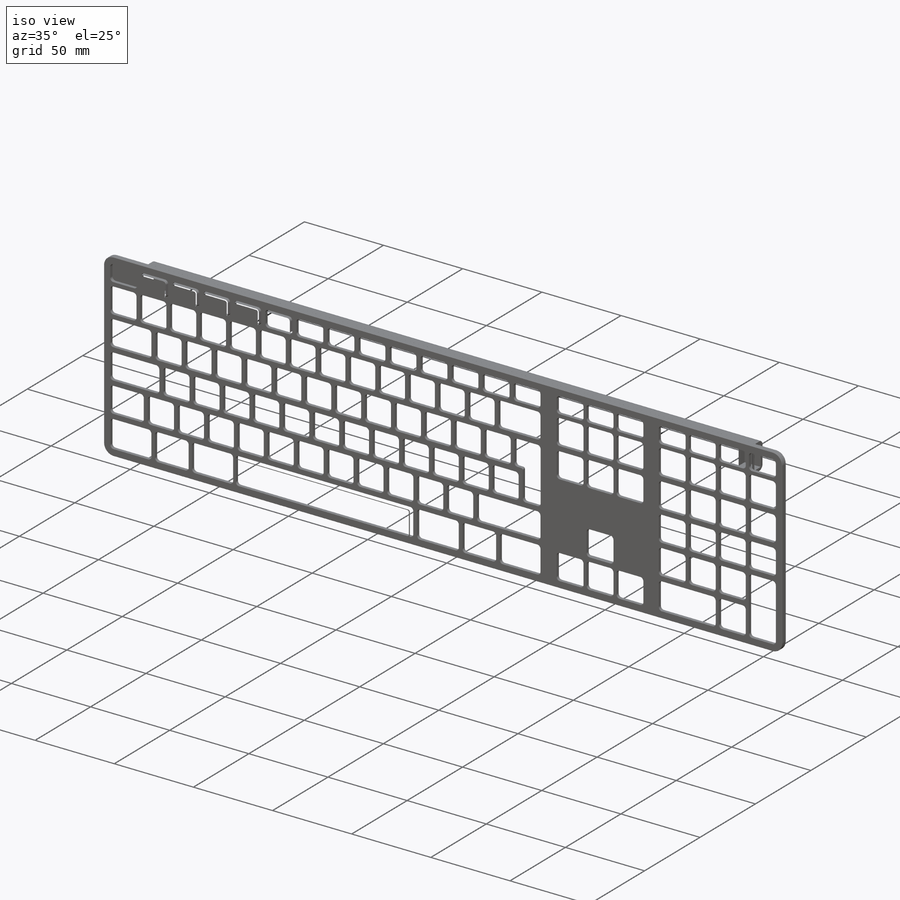
[diagram: iso view]
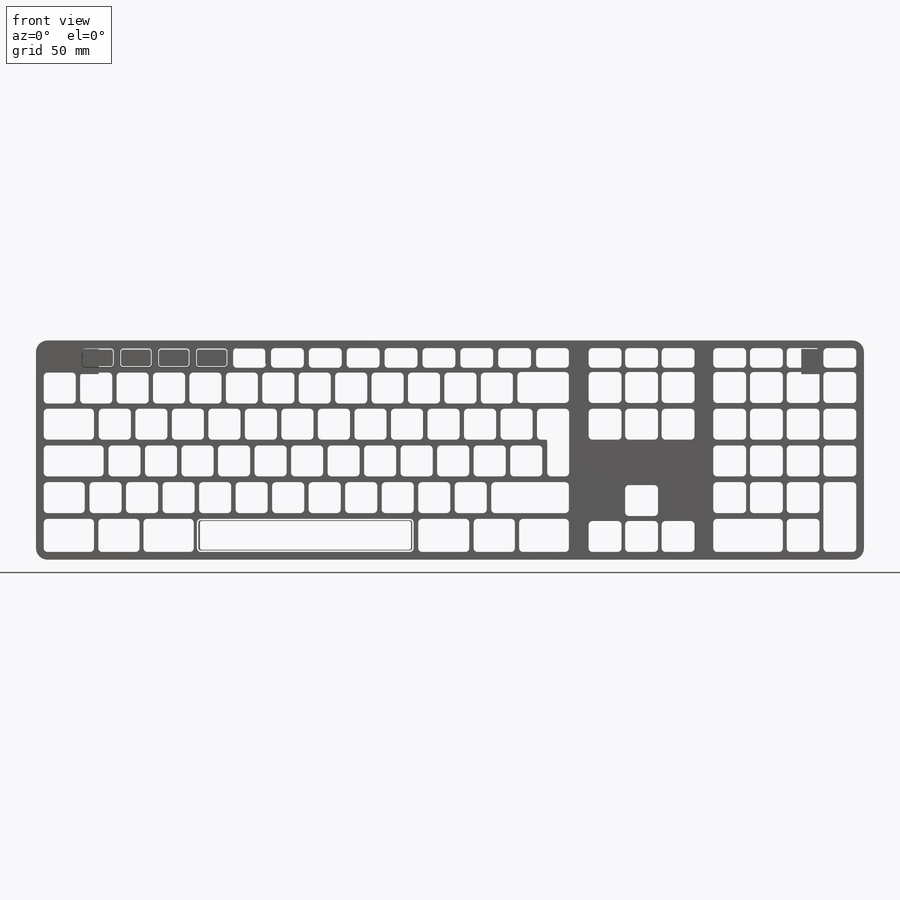
[diagram: front view]
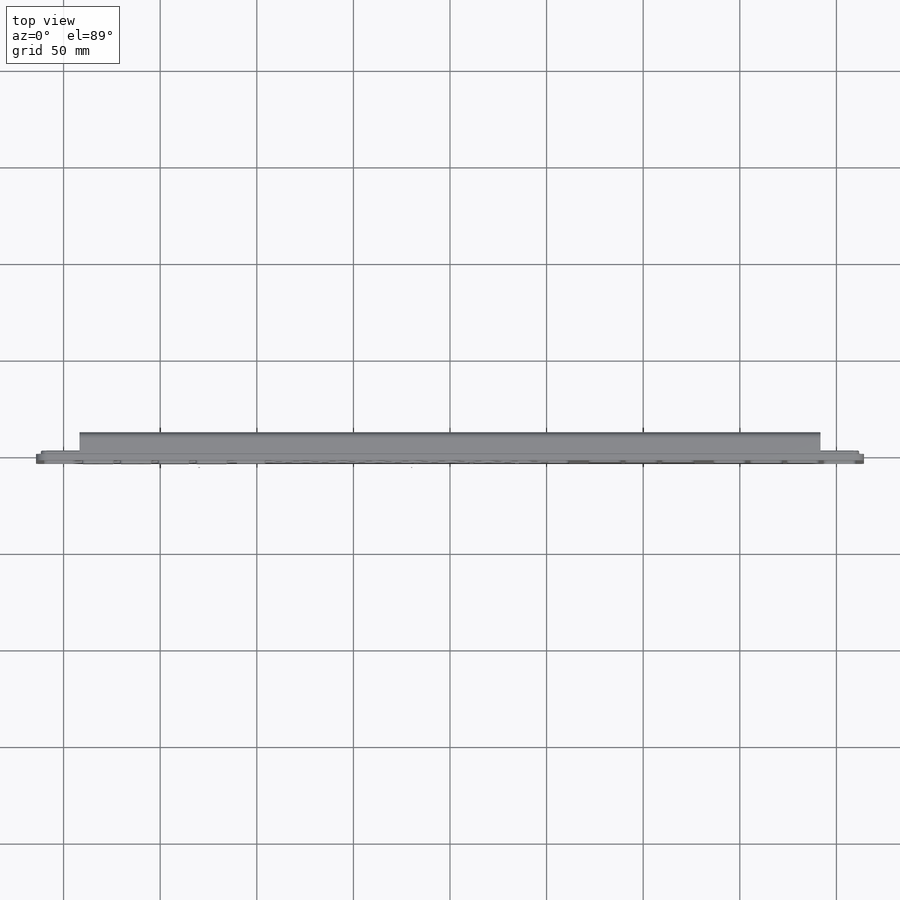
[diagram: top view]
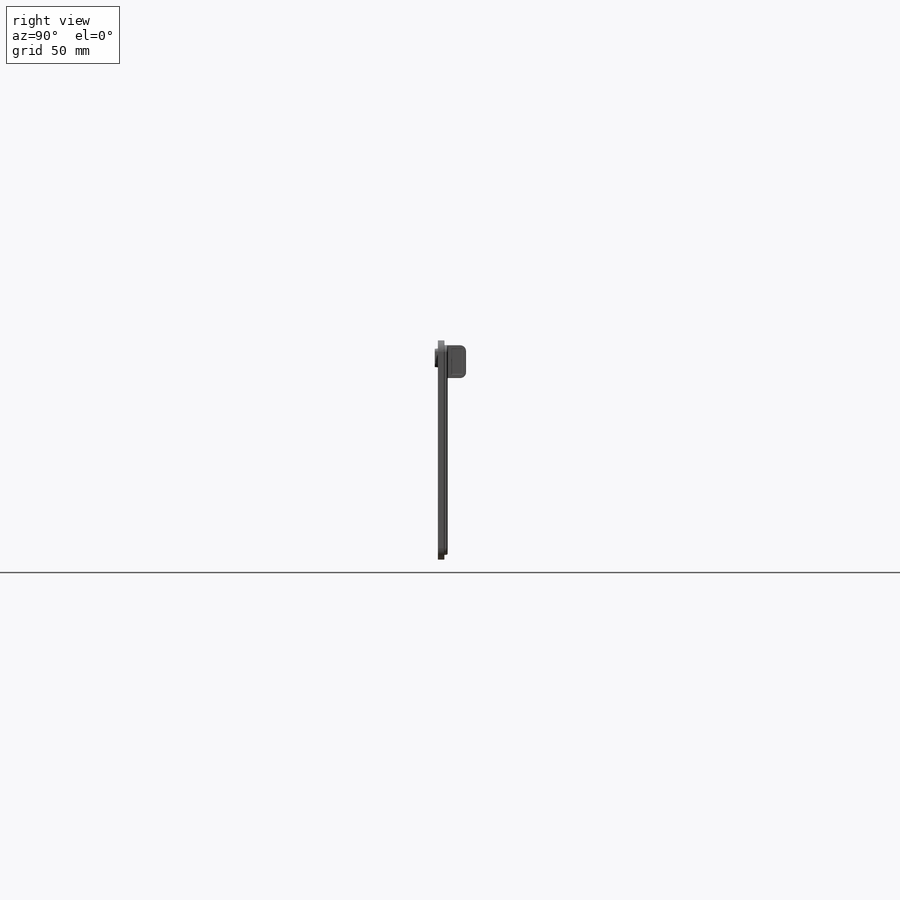
[diagram: right view]
SOLIDWORKS PART (.sldprt)
format: sldprt  version: not decoded by parser v0  size: 5,810,688 bytes
history: native  units: mm
features: sketch x11, fillet x8, extrude x6, cut_extrude x5, material x1 (+17 scaffold rows collapsed)
feature tree (48):
  scaffold x17  (default folders/planes/origin — collapsed)
  material  "Material <not specified>"
  sketch  "Sketch1"  dims[D3=6.0mm D1=113.5mm D2=428.5mm]
  extrude  "Extrude1"  Depth=3.35mm
  sketch  "Sketch2"  dims[D1=2.5mm]
  extrude  "Extrude2"  Depth=1.7mm
  sketch  "Sketch3"  dims[D1=17.0mm D2=20.0mm D3=20.0mm]
  extrude  "Extrude3"  Depth=9.5mm
  fillet  "Fillet1"  Radius=3mm
  sketch  "Sketch4"  dims[D1=2.0mm D2=2.0mm D3=2.0mm D4=5.4mm]
  cut_extrude  "Cut-Extrude1"  Depth=10mm
  sketch  "Sketch5"  dims[D1=0.0mm]
  cut_extrude  "Cut-Extrude2"  Depth=10mm
  fillet  "Fillet2"  Radius=0.7mm
  fillet  "Fillet3"  Radius=0.2mm
  fillet  "Fillet4"  Radius=0.2mm
  sketch  "Sketch6"  dims[c1.D5=2.0mm c1.D10=2.0mm c1.D13=2.0mm c1.D1=17.0mm c1.D2=10.2mm c1.D3=4.0mm c1.D4=4.0mm c1.D6=10.2mm c1.D7=17.0mm c1.D8=4.0mm c1.D9=4.0mm c1.D11=10.2mm c1.D12=17.0mm c1.D14=4.0mm c1.D15=142.0mm c1.D16=152.0mm c1.D17=276.1mm c2.D3=17.0mm c2.D4=4.0mm c2.D8=4.0mm c2.D9=4.0mm c2.D11=4.0mm c2.D14=4.0mm c2.D15=10.2mm c2.D16=142.5mm]
  cut_extrude  "Cut-Extrude3"  Depth=2mm
  sketch  "Sketch7"  dims[c1.D4=2.0mm c1.D5=2.0mm c1.D6=2.0mm c1.D9=2.0mm c1.D13=2.0mm c1.D16=2.0mm c1.D17=1.0mm c1.D18=2.0mm c1.D21=2.0mm c1.D24=2.0mm c1.D32=2.0mm c1.D35=2.0mm c1.D1=16.0mm c1.D2=16.6mm c1.D3=2.5mm c1.D7=26.0mm c1.D8=16.6mm c1.D10=2.5mm c1.D11=31.0mm c1.D12=16.6mm c2.D13=16.0mm c2.D14=2.5mm c2.D15=2.6mm c2.D19=~21.753228mm c2.D11=21.2mm c3.D19=16.6mm c3.D20=31.0mm c3.D22=2.5mm c3.D23=2.3mm c3.D25=26.0mm c3.D26=2.25mm c3.D27=21.3mm c3.D28=26.0mm c3.D29=21.3mm c3.D30=4.0mm c3.D31=21.1mm c3.D33=17.0mm c3.D34=16.0mm]
  cut_extrude  "Cut-Extrude4"  Depth=2mm
  cut_extrude  "Cut-Extrude5"  [1 undecoded]
  sketch  "Sketch7<3>"  dims[D1=2.0mm]
  sketch  "Sketch8"  dims[D1=0.0mm D2=0.0mm D3=0.0mm D4=0.0mm D5=0.0mm D6=0.0mm D7=0.0mm D8=0.0mm D9=0.0mm D10=0.0mm D11=0.0mm D12=0.0mm D13=0.0mm D14=0.0mm D15=0.0mm D16=0.0mm D17=0.0mm D18=0.0mm D19=0.0mm D20=0.0mm D21=0.0mm]
  extrude  "Extrude4"  Depth=4mm
  extrude  "Extrude5"  [1 undecoded]
  sketch  "Sketch8<4>"  dims[D1=4.0mm D3=5.0deg]
  fillet  "Fillet5"  Radius=0.4mm
  fillet  "Fillet6"  Radius=0.4mm
  fillet  "Fillet7"  Radius=0.4mm
  fillet  "Fillet8"  Radius=0.4mm
  sketch  "Sketch9"  dims[D1=1.0mm]
  extrude  "Extrude6"  Depth=0.1mm
decode coverage: 28 of 30 modeling features carry decoded parameters
note: ~ marks probable driven/reference dimensions
note: 2 parameter values undecoded
note: suppression state not decoded; provenance and decode notes live in map.json
